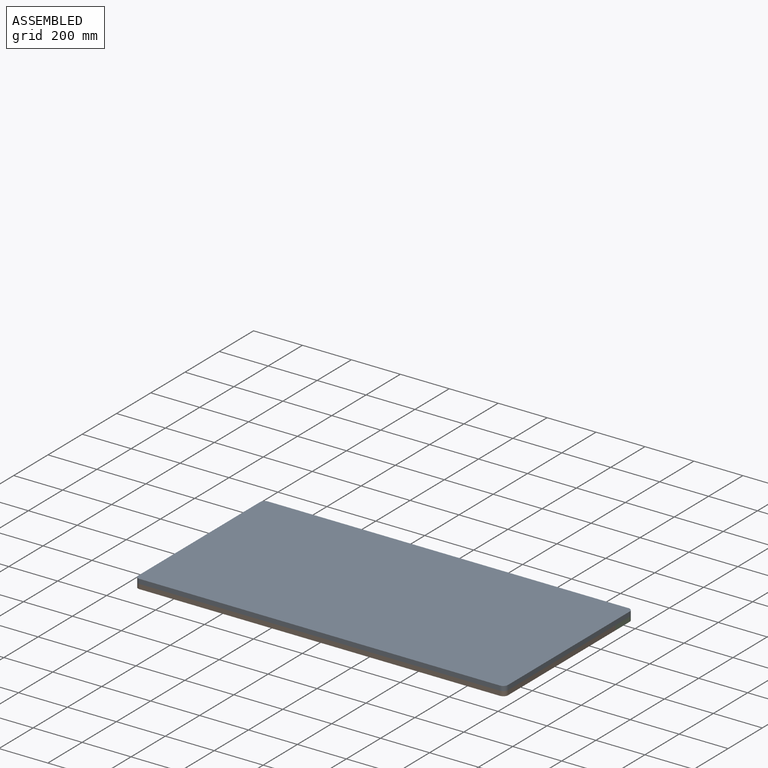
[diagram: assembled view]
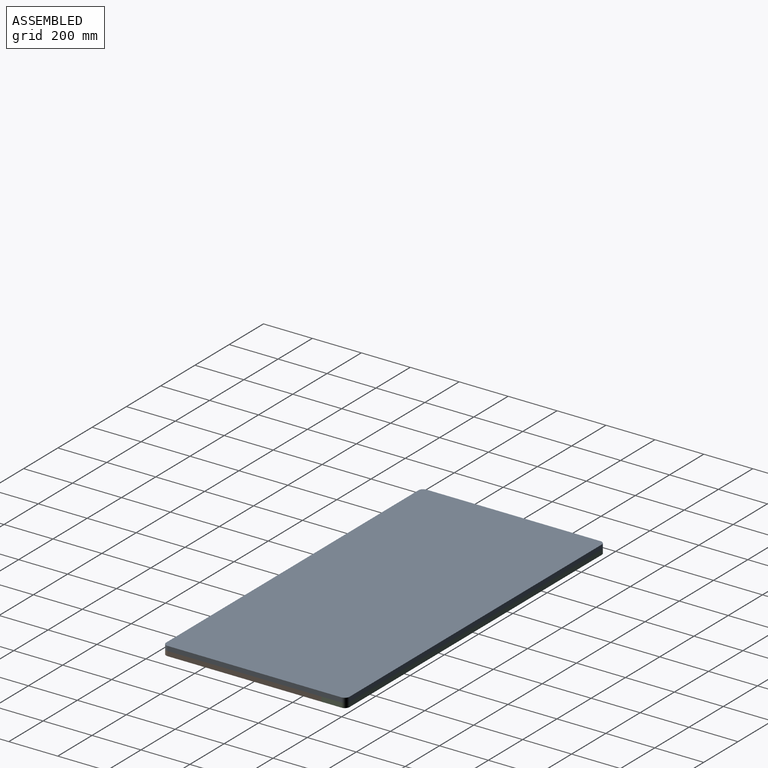
[diagram: assembled view, second angle]
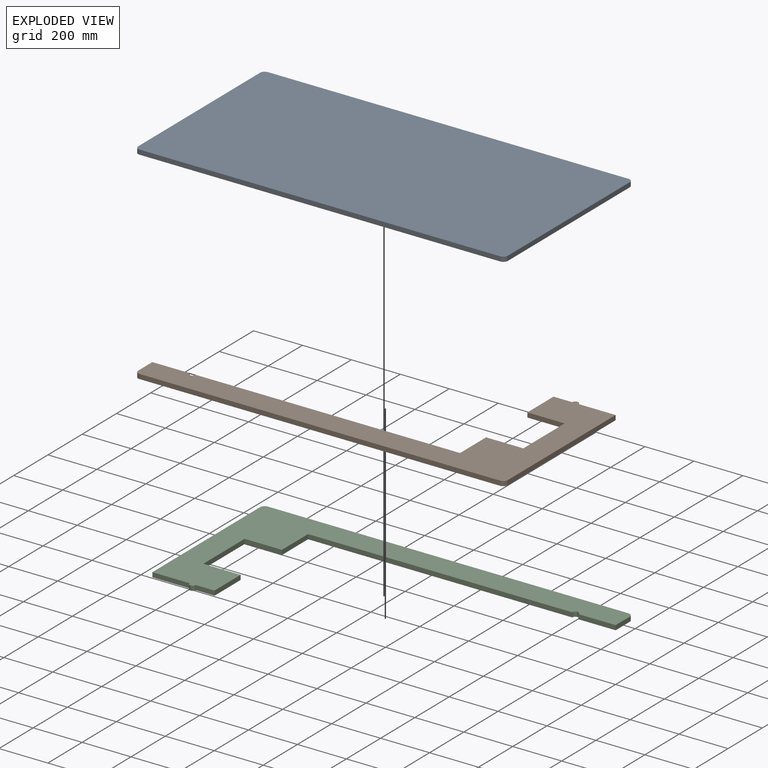
[diagram: exploded view]
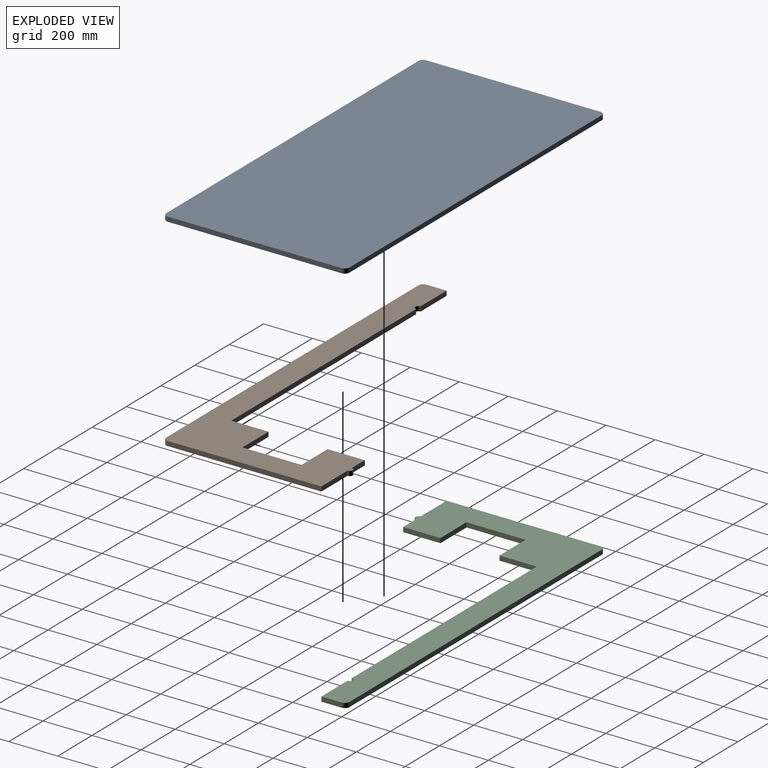
[diagram: exploded view, second angle]
ASSEMBLY  parts=3 mates=2
PART A: 10 faces, bbox 1511.3x749.3x19.1 mm
  f0: plane 1473.2x19.05mm, normal (0,-1,0), area 28064.5mm2, adj f4,f5,f6,f9
  f1: plane 711.2x19.05mm, normal (1,0,0), area 13548.4mm2, adj f4,f5,f6,f7
  f2: plane 1473.2x19.05mm, normal (0,1,0), area 28064.5mm2, adj f4,f5,f7,f8
  f3: plane 711.2x19.05mm, normal (-1,0,0), area 13548.4mm2, adj f4,f5,f8,f9
  f4: plane 1511.3x749.3mm, normal (0,0,1), area 1132105.6mm2, adj f0,f1,f2,f3,f6,f7,f8,f9
  f5: plane 1511.3x749.3mm, normal (0,0,-1), area 1132105.6mm2, adj f0,f1,f2,f3,f6,f7,f8,f9
  f6: cylinder r=19.05mm len=19.05mm, axis (0,0,1), area 570mm2, adj f0,f1,f4,f5
  f7: cylinder r=19.05mm len=19.05mm, axis (0,0,-1), area 570mm2, adj f1,f2,f4,f5
  f8: cylinder r=19.05mm len=19.05mm, axis (0,0,1), area 570mm2, adj f2,f3,f4,f5
  f9: cylinder r=19.05mm len=19.05mm, axis (0,0,-1), area 570mm2, adj f0,f3,f4,f5
PART B: 18 faces, bbox 1511.3x660.4x19.1 mm
  f0: plane 76.2x19.05mm, normal (0,1,0), area 1451.6mm2, adj f1,f13,f14,f15
  f1: plane 152.4x19.05mm, normal (-1,0,0), area 2903.2mm2, adj f0,f2,f14,f15
  f2: plane 152.4x19.05mm, normal (0,-1,0), area 2903.2mm2, adj f1,f3,f14,f15
  f3: plane 241.3x19.05mm, normal (-1,0,0), area 4596.8mm2, adj f2,f4,f14,f15
  f4: plane 152.4x19.05mm, normal (0,1,0), area 2903.2mm2, adj f3,f5,f14,f15
  f5: plane 152.4x19.05mm, normal (-1,0,0), area 2903.2mm2, adj f4,f6,f14,f15
  f6: plane 1079.5x19.05mm, normal (0,1,0), area 20564.5mm2, adj f5,f7,f14,f15
  f7: cylinder r=12.7mm len=25.4mm, axis (0,0,-1), area 760.1mm2, adj f6,f8,f14,f15
  f8: plane 152.4x19.05mm, normal (0,1,0), area 2903.2mm2, adj f7,f9,f14,f15
  f9: plane 82.55x19.05mm, normal (-1,0,0), area 1572.6mm2, adj f8,f14,f15,f16
  f10: plane 1473.2x19.05mm, normal (0,-1,0), area 28064.5mm2, adj f14,f15,f16,f17
  f11: plane 628.65x19.05mm, normal (1,0,0), area 11975.8mm2, adj f12,f14,f15,f17
  f12: plane 152.4x19.05mm, normal (0,1,0), area 2903.2mm2, adj f11,f13,f14,f15
  f13: cylinder r=12.7mm len=25.4mm, axis (0,0,-1), area 760.1mm2, adj f0,f12,f14,f15
  f14: plane 1511.3x660.4mm, normal (0,0,1), area 255327.5mm2, adj f0,f1,f2,f3,f4,f5,f6,f7
  f15: plane 1511.3x660.4mm, normal (0,0,-1), area 255327.5mm2, adj f0,f1,f2,f3,f4,f5,f6,f7
  f16: cylinder r=19.05mm len=19.05mm, axis (0,0,1), area 570mm2, adj f9,f10,f14,f15
  f17: cylinder r=19.05mm len=19.05mm, axis (0,0,-1), area 570mm2, adj f10,f11,f14,f15
PART C: same geometry as B
PLACE A t=(1629.8,-605.89,-9.52)mm
PLACE B t=(1445.31,-715.54,-28.57)mm
PLACE C rot(axis=(0,0,1),180deg) t=(1814.29,-416.04,-28.57)mm
MATE fastened C.f14 <-> B.f14  axis (0,0,1) through (874.15,-838.84,-9.52)mm
MATE fastened C.f14 <-> A.f5  axis (0,0,1) through (2366.4,-191.14,-9.52)mm
